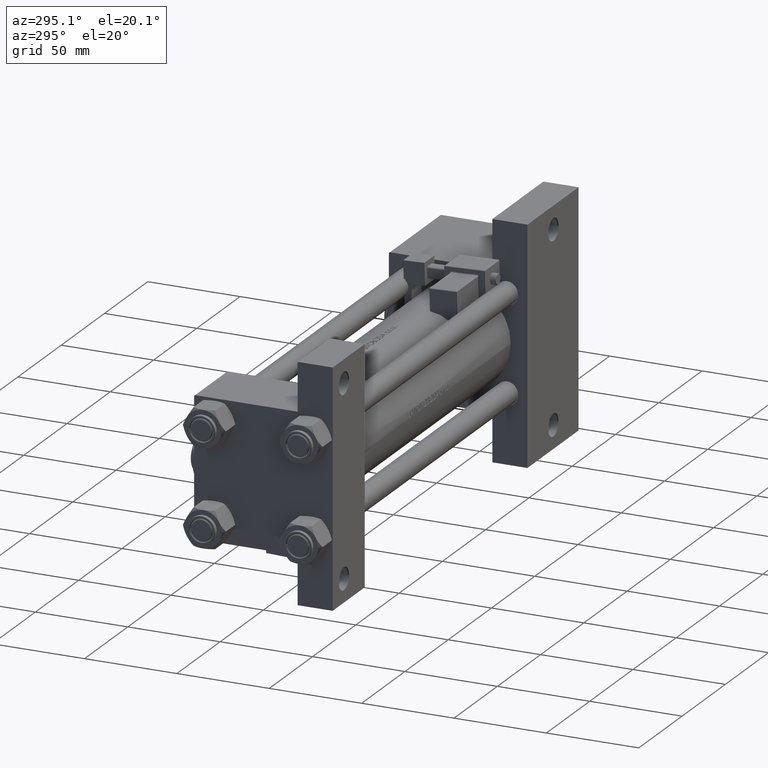
[diagram: clean part render]
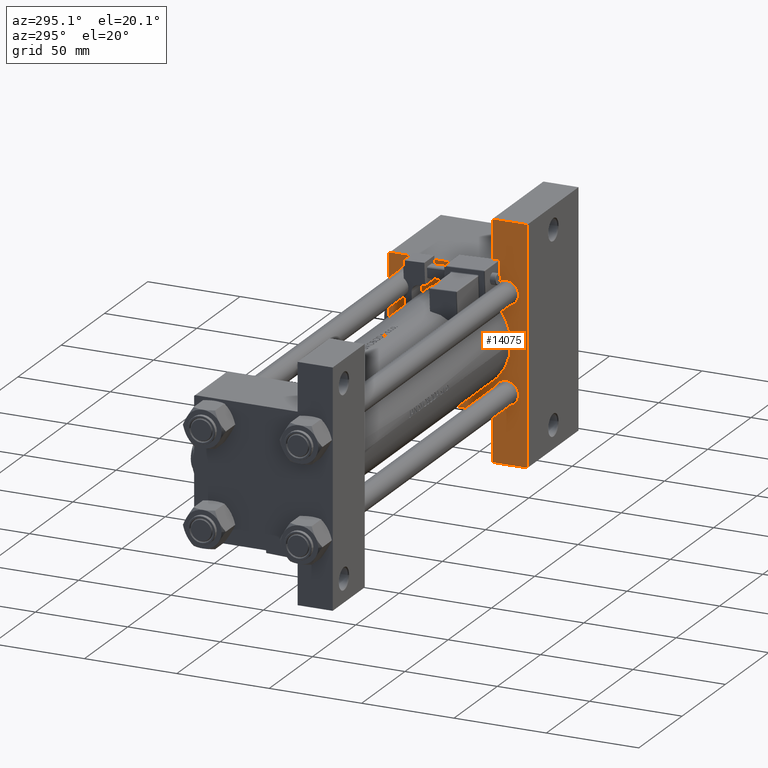
[diagram: same view with one face highlighted and labeled with its STEP entity id]
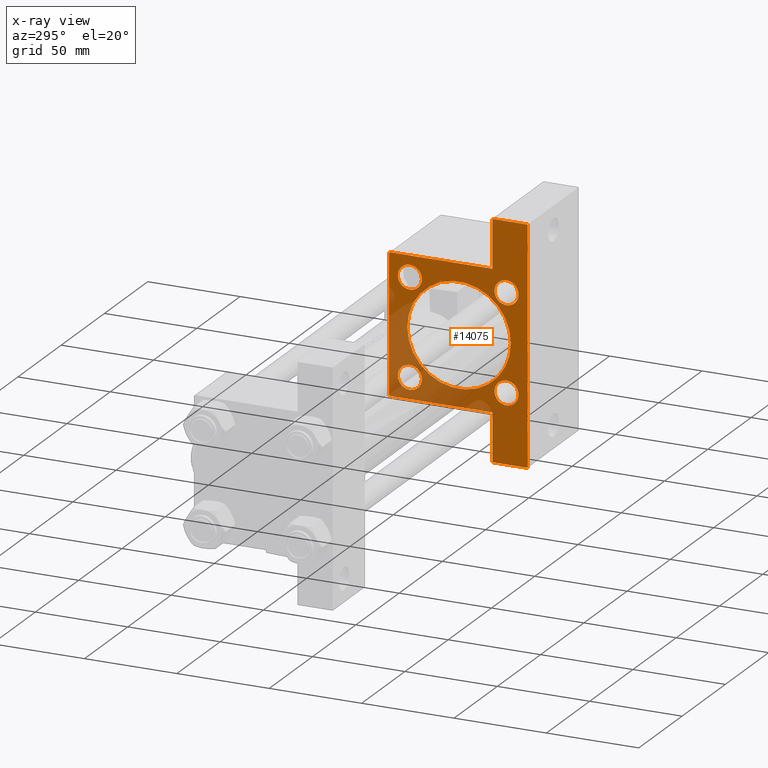
[diagram: x-ray of the same camera — body ghosted, the highlighted face saturated]
A machine part, auxiliary view. The second image highlights one B-rep face of the part: STEP entity #14075.
The next image is the same camera in x-ray: the body ghosted, the highlighted face saturated — about 25% of this face is hidden behind the body in this view.
In plain terms, the highlighted planar face has unit normal (-1, 0, 0).
Its self-contained STEP definition (entity closure, byte-faithful):
#24 = ORIENTED_EDGE ( 'NONE', *, *, #49338, .T. ) ;
#47 = EDGE_LOOP ( 'NONE', ( #6066, #32692 ) ) ;
#688 = VECTOR ( 'NONE', #23294, 1000.000000000000000 ) ;
#1051 = VECTOR ( 'NONE', #21231, 1000.000000000000000 ) ;
#1339 = VERTEX_POINT ( 'NONE', #20133 ) ;
#1552 = CARTESIAN_POINT ( 'NONE',  ( 225.0000000000000000, -37.50000000000000000, 37.49999999999997868 ) ) ;
#1681 = ORIENTED_EDGE ( 'NONE', *, *, #7833, .T. ) ;
#1726 = DIRECTION ( 'NONE',  ( 0.000000000000000000, 0.000000000000000000, 1.000000000000000000 ) ) ;
#2219 = EDGE_CURVE ( 'NONE', #48152, #41136, #30895, .T. ) ;
#2271 = CARTESIAN_POINT ( 'NONE',  ( 225.0000000000000284, 63.50000000000000000, -18.50000000000000000 ) ) ;
#2398 = EDGE_CURVE ( 'NONE', #9290, #23715, #36117, .T. ) ;
#2478 = CARTESIAN_POINT ( 'NONE',  ( 225.0000000000000000, -63.50000000000002842, -18.50000000000000000 ) ) ;
#3212 = DIRECTION ( 'NONE',  ( 0.000000000000000000, -1.000000000000000000, -1.850371707708594316E-16 ) ) ;
#3408 = DIRECTION ( 'NONE',  ( 1.000000000000000000, 0.000000000000000000, -0.000000000000000000 ) ) ;
#3941 = CARTESIAN_POINT ( 'NONE',  ( 225.0000000000000000, -63.50000000000002842, -18.50000000000000000 ) ) ;
#4042 = DIRECTION ( 'NONE',  ( 1.000000000000000000, 0.000000000000000000, -0.000000000000000000 ) ) ;
#4191 = CIRCLE ( 'NONE', #32337, 6.500000000000008882 ) ;
#4247 = CARTESIAN_POINT ( 'NONE',  ( 225.0000000000000000, 26.14999999999999858, 26.15000000000000213 ) ) ;
#4459 = EDGE_CURVE ( 'NONE', #9912, #23715, #21980, .T. ) ;
#4653 = ORIENTED_EDGE ( 'NONE', *, *, #40908, .T. ) ;
#4872 = ORIENTED_EDGE ( 'NONE', *, *, #35158, .T. ) ;
#5232 = VECTOR ( 'NONE', #51108, 1000.000000000000000 ) ;
#5589 = CARTESIAN_POINT ( 'NONE',  ( 225.0000000000000000, -26.14999999999999147, 19.65000000000000213 ) ) ;
#5598 = DIRECTION ( 'NONE',  ( 1.000000000000000000, 0.000000000000000000, -0.000000000000000000 ) ) ;
#5861 = CARTESIAN_POINT ( 'NONE',  ( 225.0000000000000000, -26.14999999999999147, 26.15000000000000924 ) ) ;
#5930 = VERTEX_POINT ( 'NONE', #26836 ) ;
#6066 = ORIENTED_EDGE ( 'NONE', *, *, #10613, .T. ) ;
#7224 = ORIENTED_EDGE ( 'NONE', *, *, #2219, .T. ) ;
#7225 = PLANE ( 'NONE',  #19810 ) ;
#7351 = VECTOR ( 'NONE', #3212, 1000.000000000000000 ) ;
#7444 = CARTESIAN_POINT ( 'NONE',  ( 225.0000000000000000, 26.14999999999999858, -32.65000000000001279 ) ) ;
#7505 = LINE ( 'NONE', #15278, #688 ) ;
#7833 = EDGE_CURVE ( 'NONE', #9912, #29579, #31854, .T. ) ;
#8096 = DIRECTION ( 'NONE',  ( 1.000000000000000000, 0.000000000000000000, 0.000000000000000000 ) ) ;
#8199 = EDGE_LOOP ( 'NONE', ( #7224, #35760 ) ) ;
#8517 = ORIENTED_EDGE ( 'NONE', *, *, #44735, .T. ) ;
#9004 = VERTEX_POINT ( 'NONE', #26805 ) ;
#9131 = AXIS2_PLACEMENT_3D ( 'NONE', #5861, #18283, #34091 ) ;
#9290 = VERTEX_POINT ( 'NONE', #3941 ) ;
#9613 = EDGE_CURVE ( 'NONE', #30213, #22206, #21278, .T. ) ;
#9691 = AXIS2_PLACEMENT_3D ( 'NONE', #39542, #4042, #15439 ) ;
#9912 = VERTEX_POINT ( 'NONE', #22621 ) ;
#10116 = AXIS2_PLACEMENT_3D ( 'NONE', #46695, #39204, #30918 ) ;
#10613 = EDGE_CURVE ( 'NONE', #32037, #1339, #25424, .T. ) ;
#10925 = CIRCLE ( 'NONE', #10116, 6.499999999999995559 ) ;
#11010 = AXIS2_PLACEMENT_3D ( 'NONE', #33543, #13340, #29144 ) ;
#11110 = FACE_BOUND ( 'NONE', #47, .T. ) ;
#11341 = AXIS2_PLACEMENT_3D ( 'NONE', #21403, #5598, #1726 ) ;
#11689 = ORIENTED_EDGE ( 'NONE', *, *, #40637, .T. ) ;
#12149 = DIRECTION ( 'NONE',  ( -0.000000000000000000, 0.7071067811865474617, 0.7071067811865474617 ) ) ;
#12276 = CARTESIAN_POINT ( 'NONE',  ( 225.0000000000000000, 37.50000000000000000, -37.50000000000000000 ) ) ;
#12640 = EDGE_CURVE ( 'NONE', #22206, #30213, #32973, .T. ) ;
#13340 = DIRECTION ( 'NONE',  ( 1.000000000000000000, 0.000000000000000000, 0.000000000000000000 ) ) ;
#14075 = ADVANCED_FACE ( 'NONE', ( #30816, #26663, #42477, #11110, #26917, #42724 ), #7225, .T. ) ;
#14647 = LINE ( 'NONE', #2478, #27176 ) ;
#15278 = CARTESIAN_POINT ( 'NONE',  ( 225.0000000000000284, 63.50000000000000000, -18.50000000000000000 ) ) ;
#15409 = VERTEX_POINT ( 'NONE', #29945 ) ;
#15439 = DIRECTION ( 'NONE',  ( 0.000000000000000000, 0.000000000000000000, 1.000000000000000000 ) ) ;
#15589 = CARTESIAN_POINT ( 'NONE',  ( 225.0000000000000000, -26.14999999999999147, -19.65000000000000213 ) ) ;
#15903 = CARTESIAN_POINT ( 'NONE',  ( 225.0000000000000000, 37.50000000000000000, 37.49999999999999289 ) ) ;
#15925 = VECTOR ( 'NONE', #32228, 1000.000000000000000 ) ;
#16201 = DIRECTION ( 'NONE',  ( 0.000000000000000000, 0.000000000000000000, 1.000000000000000000 ) ) ;
#18283 = DIRECTION ( 'NONE',  ( 1.000000000000000000, 0.000000000000000000, -0.000000000000000000 ) ) ;
#18368 = CARTESIAN_POINT ( 'NONE',  ( 225.0000000000000000, 36.99999999999994316, 37.49999999999999289 ) ) ;
#19118 = ORIENTED_EDGE ( 'NONE', *, *, #41768, .F. ) ;
#19268 = DIRECTION ( 'NONE',  ( 0.000000000000000000, 0.000000000000000000, -1.000000000000000000 ) ) ;
#19588 = DIRECTION ( 'NONE',  ( 0.000000000000000000, 0.7071067811865474617, -0.7071067811865474617 ) ) ;
#19788 = ORIENTED_EDGE ( 'NONE', *, *, #29128, .T. ) ;
#19810 = AXIS2_PLACEMENT_3D ( 'NONE', #48142, #31860, #24337 ) ;
#20133 = CARTESIAN_POINT ( 'NONE',  ( 225.0000000000000000, -26.14999999999999147, -32.65000000000002700 ) ) ;
#20191 = VERTEX_POINT ( 'NONE', #20984 ) ;
#20984 = CARTESIAN_POINT ( 'NONE',  ( 225.0000000000000000, 26.14999999999999858, 32.65000000000000568 ) ) ;
#21231 = DIRECTION ( 'NONE',  ( 0.000000000000000000, -9.251858538542972814E-17, -1.000000000000000000 ) ) ;
#21278 = CIRCLE ( 'NONE', #11341, 6.500000000000008882 ) ;
#21403 = CARTESIAN_POINT ( 'NONE',  ( 225.0000000000000000, 26.14999999999999858, -26.15000000000000213 ) ) ;
#21980 = LINE ( 'NONE', #1552, #1051 ) ;
#22055 = CARTESIAN_POINT ( 'NONE',  ( 225.0000000000000000, 3.429011037612589276E-15, -28.50000000000000000 ) ) ;
#22206 = VERTEX_POINT ( 'NONE', #7444 ) ;
#22621 = CARTESIAN_POINT ( 'NONE',  ( 225.0000000000000000, -37.50000000000000000, 36.99999999999995026 ) ) ;
#22882 = LINE ( 'NONE', #30423, #7351 ) ;
#22929 = ORIENTED_EDGE ( 'NONE', *, *, #24741, .T. ) ;
#23294 = DIRECTION ( 'NONE',  ( 0.000000000000000000, 0.000000000000000000, -1.000000000000000000 ) ) ;
#23715 = VERTEX_POINT ( 'NONE', #46948 ) ;
#24337 = DIRECTION ( 'NONE',  ( 0.000000000000000000, 0.000000000000000000, 1.000000000000000000 ) ) ;
#24735 = EDGE_CURVE ( 'NONE', #48811, #20191, #48145, .T. ) ;
#24741 = EDGE_CURVE ( 'NONE', #27035, #15409, #44377, .T. ) ;
#24956 = DIRECTION ( 'NONE',  ( 0.000000000000000000, 0.000000000000000000, 1.000000000000000000 ) ) ;
#25424 = CIRCLE ( 'NONE', #9691, 6.500000000000008882 ) ;
#26076 = VERTEX_POINT ( 'NONE', #31597 ) ;
#26663 = FACE_BOUND ( 'NONE', #37664, .T. ) ;
#26721 = DIRECTION ( 'NONE',  ( 0.000000000000000000, 0.000000000000000000, 1.000000000000000000 ) ) ;
#26733 = EDGE_LOOP ( 'NONE', ( #19118, #24, #4653, #50281, #4872, #22929, #44635, #37890, #27700, #1681 ) ) ;
#26805 = CARTESIAN_POINT ( 'NONE',  ( 225.0000000000000000, -26.14999999999999147, 32.65000000000001990 ) ) ;
#26836 = CARTESIAN_POINT ( 'NONE',  ( 225.0000000000000000, 37.50000000000000000, -18.50000000000000355 ) ) ;
#26917 = FACE_BOUND ( 'NONE', #8199, .T. ) ;
#27035 = VERTEX_POINT ( 'NONE', #27610 ) ;
#27176 = VECTOR ( 'NONE', #33841, 1000.000000000000000 ) ;
#27347 = DIRECTION ( 'NONE',  ( 0.000000000000000000, 0.000000000000000000, 1.000000000000000000 ) ) ;
#27610 = CARTESIAN_POINT ( 'NONE',  ( 225.0000000000000284, 63.50000000000000000, -37.50000000000000000 ) ) ;
#27700 = ORIENTED_EDGE ( 'NONE', *, *, #4459, .F. ) ;
#28277 = CARTESIAN_POINT ( 'NONE',  ( 225.0000000000000000, 26.14999999999999858, 19.65000000000000568 ) ) ;
#28367 = DIRECTION ( 'NONE',  ( 1.000000000000000000, 0.000000000000000000, -0.000000000000000000 ) ) ;
#28546 = ORIENTED_EDGE ( 'NONE', *, *, #9613, .T. ) ;
#28564 = DIRECTION ( 'NONE',  ( 0.000000000000000000, 0.000000000000000000, -1.000000000000000000 ) ) ;
#29042 = CIRCLE ( 'NONE', #46388, 28.00000000000000000 ) ;
#29128 = EDGE_CURVE ( 'NONE', #20191, #48811, #10925, .T. ) ;
#29144 = DIRECTION ( 'NONE',  ( 0.000000000000000000, 0.000000000000000000, -1.000000000000000000 ) ) ;
#29579 = VERTEX_POINT ( 'NONE', #31625 ) ;
#29945 = CARTESIAN_POINT ( 'NONE',  ( 225.0000000000000000, -63.50000000000002842, -37.50000000000000000 ) ) ;
#30213 = VERTEX_POINT ( 'NONE', #49070 ) ;
#30423 = CARTESIAN_POINT ( 'NONE',  ( 225.0000000000000000, 37.50000000000000000, 37.49999999999999289 ) ) ;
#30816 = FACE_BOUND ( 'NONE', #37601, .T. ) ;
#30895 = CIRCLE ( 'NONE', #11010, 28.00000000000000000 ) ;
#30918 = DIRECTION ( 'NONE',  ( 0.000000000000000000, 0.000000000000000000, 1.000000000000000000 ) ) ;
#30994 = LINE ( 'NONE', #39540, #42412 ) ;
#31181 = ORIENTED_EDGE ( 'NONE', *, *, #24735, .T. ) ;
#31354 = EDGE_CURVE ( 'NONE', #5930, #43024, #50866, .T. ) ;
#31597 = CARTESIAN_POINT ( 'NONE',  ( 225.0000000000000000, 37.50000000000000000, 36.99999999999993605 ) ) ;
#31625 = CARTESIAN_POINT ( 'NONE',  ( 225.0000000000000000, -36.99999999999997158, 37.49999999999997868 ) ) ;
#31854 = LINE ( 'NONE', #47630, #35265 ) ;
#31860 = DIRECTION ( 'NONE',  ( -1.000000000000000000, -0.000000000000000000, 0.000000000000000000 ) ) ;
#32037 = VERTEX_POINT ( 'NONE', #15589 ) ;
#32228 = DIRECTION ( 'NONE',  ( 0.000000000000000000, -1.000000000000000000, 0.000000000000000000 ) ) ;
#32337 = AXIS2_PLACEMENT_3D ( 'NONE', #36664, #28367, #16201 ) ;
#32692 = ORIENTED_EDGE ( 'NONE', *, *, #43893, .T. ) ;
#32707 = CARTESIAN_POINT ( 'NONE',  ( 225.0000000000000000, 0.000000000000000000, -0.5000000000000004441 ) ) ;
#32973 = CIRCLE ( 'NONE', #34586, 6.500000000000008882 ) ;
#33543 = CARTESIAN_POINT ( 'NONE',  ( 225.0000000000000000, 0.000000000000000000, -0.5000000000000004441 ) ) ;
#33809 = VECTOR ( 'NONE', #19268, 1000.000000000000000 ) ;
#33841 = DIRECTION ( 'NONE',  ( 0.000000000000000000, 0.000000000000000000, -1.000000000000000000 ) ) ;
#34091 = DIRECTION ( 'NONE',  ( 0.000000000000000000, 0.000000000000000000, 1.000000000000000000 ) ) ;
#34586 = AXIS2_PLACEMENT_3D ( 'NONE', #50277, #3408, #26721 ) ;
#35091 = DIRECTION ( 'NONE',  ( -0.000000000000000000, 1.000000000000000000, -0.000000000000000000 ) ) ;
#35158 = EDGE_CURVE ( 'NONE', #43024, #27035, #7505, .T. ) ;
#35265 = VECTOR ( 'NONE', #12149, 1000.000000000000114 ) ;
#35597 = CARTESIAN_POINT ( 'NONE',  ( 225.0000000000000000, -63.50000000000002842, -18.50000000000000000 ) ) ;
#35601 = LINE ( 'NONE', #15903, #33809 ) ;
#35665 = CARTESIAN_POINT ( 'NONE',  ( 225.0000000000000000, -26.14999999999999147, 26.15000000000000924 ) ) ;
#35760 = ORIENTED_EDGE ( 'NONE', *, *, #45218, .T. ) ;
#35793 = AXIS2_PLACEMENT_3D ( 'NONE', #4247, #48504, #24956 ) ;
#35864 = VECTOR ( 'NONE', #35091, 1000.000000000000000 ) ;
#36117 = LINE ( 'NONE', #35597, #5232 ) ;
#36181 = DIRECTION ( 'NONE',  ( 1.000000000000000000, 0.000000000000000000, -0.000000000000000000 ) ) ;
#36458 = CIRCLE ( 'NONE', #9131, 6.500000000000008882 ) ;
#36651 = EDGE_CURVE ( 'NONE', #9290, #15409, #14647, .T. ) ;
#36664 = CARTESIAN_POINT ( 'NONE',  ( 225.0000000000000000, -26.14999999999999147, -26.15000000000000924 ) ) ;
#37601 = EDGE_LOOP ( 'NONE', ( #11689, #8517 ) ) ;
#37664 = EDGE_LOOP ( 'NONE', ( #19788, #31181 ) ) ;
#37890 = ORIENTED_EDGE ( 'NONE', *, *, #2398, .T. ) ;
#38320 = CARTESIAN_POINT ( 'NONE',  ( 225.0000000000000000, 0.000000000000000000, 27.50000000000000000 ) ) ;
#38519 = VERTEX_POINT ( 'NONE', #5589 ) ;
#39204 = DIRECTION ( 'NONE',  ( 1.000000000000000000, 0.000000000000000000, -0.000000000000000000 ) ) ;
#39540 = CARTESIAN_POINT ( 'NONE',  ( 225.0000000000000000, 37.24999999999996447, 37.24999999999996447 ) ) ;
#39542 = CARTESIAN_POINT ( 'NONE',  ( 225.0000000000000000, -26.14999999999999147, -26.15000000000000924 ) ) ;
#40637 = EDGE_CURVE ( 'NONE', #9004, #38519, #43763, .T. ) ;
#40908 = EDGE_CURVE ( 'NONE', #26076, #5930, #35601, .T. ) ;
#41136 = VERTEX_POINT ( 'NONE', #22055 ) ;
#41481 = VERTEX_POINT ( 'NONE', #18368 ) ;
#41768 = EDGE_CURVE ( 'NONE', #41481, #29579, #22882, .T. ) ;
#42412 = VECTOR ( 'NONE', #19588, 1000.000000000000114 ) ;
#42477 = FACE_BOUND ( 'NONE', #43050, .T. ) ;
#42724 = FACE_OUTER_BOUND ( 'NONE', #26733, .T. ) ;
#43024 = VERTEX_POINT ( 'NONE', #2271 ) ;
#43050 = EDGE_LOOP ( 'NONE', ( #28546, #51168 ) ) ;
#43620 = CARTESIAN_POINT ( 'NONE',  ( 225.0000000000000284, 63.50000000000000000, -18.50000000000000000 ) ) ;
#43763 = CIRCLE ( 'NONE', #49497, 6.500000000000008882 ) ;
#43893 = EDGE_CURVE ( 'NONE', #1339, #32037, #4191, .T. ) ;
#44377 = LINE ( 'NONE', #12276, #15925 ) ;
#44635 = ORIENTED_EDGE ( 'NONE', *, *, #36651, .F. ) ;
#44735 = EDGE_CURVE ( 'NONE', #38519, #9004, #36458, .T. ) ;
#45218 = EDGE_CURVE ( 'NONE', #41136, #48152, #29042, .T. ) ;
#46388 = AXIS2_PLACEMENT_3D ( 'NONE', #32707, #8096, #28564 ) ;
#46695 = CARTESIAN_POINT ( 'NONE',  ( 225.0000000000000000, 26.14999999999999858, 26.15000000000000213 ) ) ;
#46948 = CARTESIAN_POINT ( 'NONE',  ( 225.0000000000000000, -37.50000000000000000, -18.50000000000000000 ) ) ;
#47630 = CARTESIAN_POINT ( 'NONE',  ( 225.0000000000000000, -37.24999999999997158, 37.24999999999997158 ) ) ;
#48142 = CARTESIAN_POINT ( 'NONE',  ( 225.0000000000000000, 0.000000000000000000, 0.000000000000000000 ) ) ;
#48145 = CIRCLE ( 'NONE', #35793, 6.499999999999995559 ) ;
#48152 = VERTEX_POINT ( 'NONE', #38320 ) ;
#48504 = DIRECTION ( 'NONE',  ( 1.000000000000000000, 0.000000000000000000, -0.000000000000000000 ) ) ;
#48811 = VERTEX_POINT ( 'NONE', #28277 ) ;
#49070 = CARTESIAN_POINT ( 'NONE',  ( 225.0000000000000000, 26.14999999999999858, -19.64999999999999503 ) ) ;
#49338 = EDGE_CURVE ( 'NONE', #41481, #26076, #30994, .T. ) ;
#49497 = AXIS2_PLACEMENT_3D ( 'NONE', #35665, #36181, #27347 ) ;
#50277 = CARTESIAN_POINT ( 'NONE',  ( 225.0000000000000000, 26.14999999999999858, -26.15000000000000213 ) ) ;
#50281 = ORIENTED_EDGE ( 'NONE', *, *, #31354, .T. ) ;
#50866 = LINE ( 'NONE', #43620, #35864 ) ;
#51108 = DIRECTION ( 'NONE',  ( 0.000000000000000000, 1.000000000000000000, 0.000000000000000000 ) ) ;
#51168 = ORIENTED_EDGE ( 'NONE', *, *, #12640, .T. ) ;